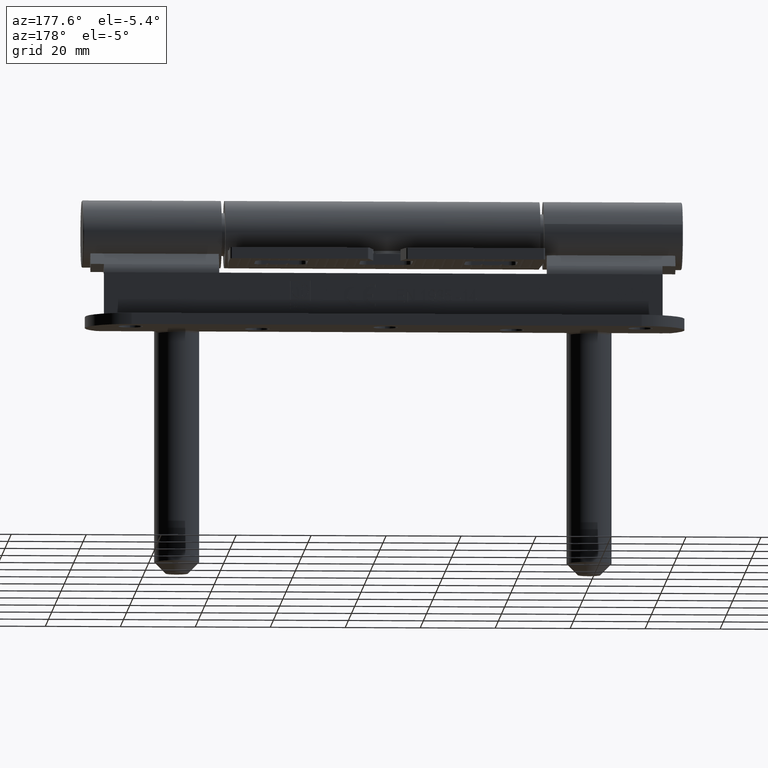
[diagram: clean part render]
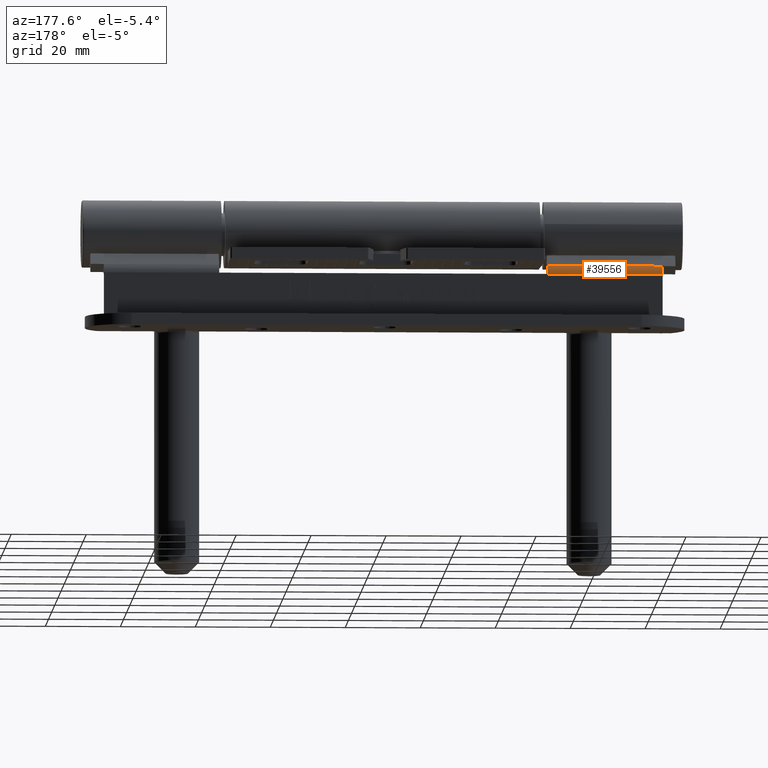
[diagram: same view with one face highlighted and labeled with its STEP entity id]
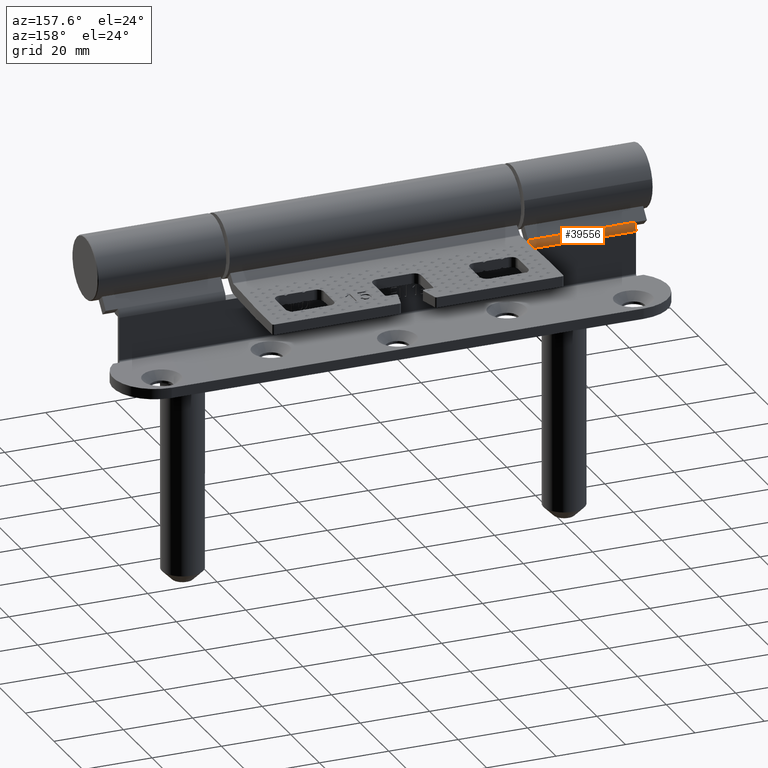
[diagram: same view with one face highlighted and labeled with its STEP entity id]
A machine part, auxiliary view. The second image highlights one B-rep face of the part: STEP entity #39556.
A second angle (auxiliary view) of the same face is appended — the face is thin or edge-on in the first view.
In plain terms, the highlighted cylindrical surface (edge-blend (fillet) strip) has radius 3.5 mm, axis along (-1, 0, -0).
Its self-contained STEP definition (entity closure, byte-faithful):
#1556 = AXIS2_PLACEMENT_3D ( 'NONE', #22893, #22373, #1982 ) ;
#1666 = ORIENTED_EDGE ( 'NONE', *, *, #17157, .F. ) ;
#1982 = DIRECTION ( 'NONE',  ( 1.000000000000000000, 0.000000000000000000, 0.000000000000000000 ) ) ;
#2318 = EDGE_CURVE ( 'NONE', #8195, #49235, #40513, .T. ) ;
#5758 = DIRECTION ( 'NONE',  ( 1.000000000000000000, 0.000000000000000000, 0.000000000000000000 ) ) ;
#5832 = EDGE_CURVE ( 'NONE', #35643, #37113, #41916, .T. ) ;
#6022 = FACE_OUTER_BOUND ( 'NONE', #7249, .T. ) ;
#7249 = EDGE_LOOP ( 'NONE', ( #18112, #14921, #1666, #44692 ) ) ;
#8195 = VERTEX_POINT ( 'NONE', #25695 ) ;
#9251 = CARTESIAN_POINT ( 'NONE',  ( -24.50000000000013856, 28.19626839508303817, 15.81427028705647153 ) ) ;
#14921 = ORIENTED_EDGE ( 'NONE', *, *, #2318, .F. ) ;
#15892 = CARTESIAN_POINT ( 'NONE',  ( -21.00000000000008882, 80.00000000000001421, 15.81427028705646087 ) ) ;
#17157 = EDGE_CURVE ( 'NONE', #35643, #8195, #42619, .T. ) ;
#18112 = ORIENTED_EDGE ( 'NONE', *, *, #23031, .F. ) ;
#20825 = DIRECTION ( 'NONE',  ( 6.463117025072475944E-31, -1.000000000000000000, -1.035379938102577995E-30 ) ) ;
#21331 = CARTESIAN_POINT ( 'NONE',  ( -21.84876091746171056, 74.50000000000001421, 18.09920602515083488 ) ) ;
#21884 = CARTESIAN_POINT ( 'NONE',  ( -21.84876091746169280, 80.00000000000001421, 18.09920602515083843 ) ) ;
#22265 = AXIS2_PLACEMENT_3D ( 'NONE', #27722, #49102, #40260 ) ;
#22373 = DIRECTION ( 'NONE',  ( -6.463117025072475944E-31, 1.000000000000000000, 1.035379938102577995E-30 ) ) ;
#22893 = CARTESIAN_POINT ( 'NONE',  ( -24.50000000000013145, 74.50000000000001421, 15.81427028705646087 ) ) ;
#23031 = EDGE_CURVE ( 'NONE', #49235, #37113, #41910, .T. ) ;
#25695 = CARTESIAN_POINT ( 'NONE',  ( -21.00000000000010303, 74.50000000000001421, 15.81427028705646443 ) ) ;
#26288 = VECTOR ( 'NONE', #20825, 1000.000000000000000 ) ;
#26772 = VECTOR ( 'NONE', #35974, 1000.000000000000000 ) ;
#27722 = CARTESIAN_POINT ( 'NONE',  ( -24.50000000000013145, 43.75000000000002132, 15.81427028705646087 ) ) ;
#30629 = CARTESIAN_POINT ( 'NONE',  ( -21.84876091746169280, 43.75000000000002132, 18.09920602515083488 ) ) ;
#35643 = VERTEX_POINT ( 'NONE', #21331 ) ;
#35974 = DIRECTION ( 'NONE',  ( 6.463117025072475944E-31, -1.000000000000000000, -1.035379938102577995E-30 ) ) ;
#35983 = AXIS2_PLACEMENT_3D ( 'NONE', #9251, #38654, #5758 ) ;
#37113 = VERTEX_POINT ( 'NONE', #30629 ) ;
#38654 = DIRECTION ( 'NONE',  ( -6.463117025072475944E-31, 1.000000000000000000, 1.035379938102577995E-30 ) ) ;
#39556 = ADVANCED_FACE ( 'NONE', ( #6022 ), #42418, .T. ) ;
#40260 = DIRECTION ( 'NONE',  ( 1.000000000000000000, 0.000000000000000000, 0.000000000000000000 ) ) ;
#40513 = LINE ( 'NONE', #15892, #26772 ) ;
#41910 = CIRCLE ( 'NONE', #22265, 3.500000000000013323 ) ;
#41916 = LINE ( 'NONE', #21884, #26288 ) ;
#42418 = CYLINDRICAL_SURFACE ( 'NONE', #35983, 3.500000000000013323 ) ;
#42619 = CIRCLE ( 'NONE', #1556, 3.500000000000013323 ) ;
#44692 = ORIENTED_EDGE ( 'NONE', *, *, #5832, .T. ) ;
#44845 = CARTESIAN_POINT ( 'NONE',  ( -21.00000000000008882, 43.75000000000002132, 15.81427028705645732 ) ) ;
#49102 = DIRECTION ( 'NONE',  ( 6.463117025072475944E-31, -1.000000000000000000, -1.035379938102577995E-30 ) ) ;
#49235 = VERTEX_POINT ( 'NONE', #44845 ) ;